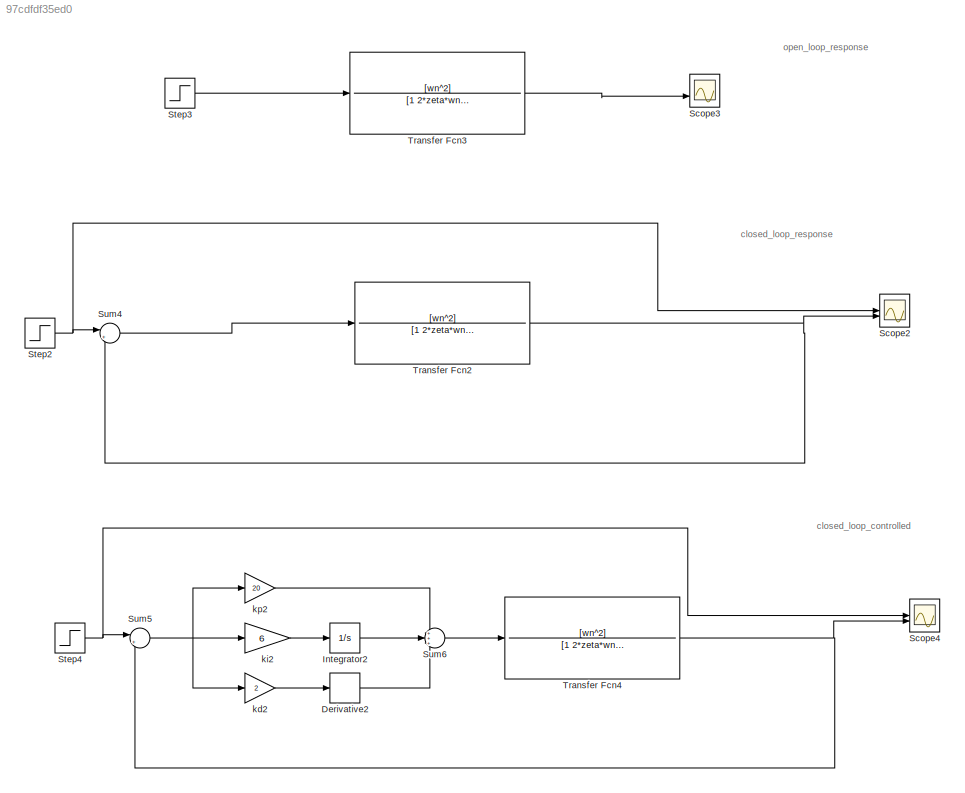
MODEL slx_97cdfdf35ed0
KIND model
CONFIG AbsTol = auto
CONFIG EnableMultiTasking = off
CONFIG FixedStep = auto
CONFIG MaxStep = 1e-3
CONFIG MinStep = auto
CONFIG RelTol = auto
CONFIG SampleTimeConstraint = Unconstrained
CONFIG SolverName = VariableStepAuto
CONFIG StartTime = 0.0
CONFIG StopTime = 10.0
BLOCK [Derivative] Derivative2
BLOCK [Integrator] Integrator2
BLOCK [Scope] Scope2
  Floating = off
  NumInputPorts = 2
  ScopeSpecificationString = Simulink.scopes.TimeScopeBlockCfg('CurrentConfiguration', extmgr.ConfigurationSet(extmgr.Configuration('Core','General UI',true),extmgr.Configuration('Core','Source UI',true),extmgr.Configuration('Sources','WiredSimulink',true,'DataLoggingVariableName','ScopeData2'),extmgr.Configuration('Visuals','Time Domain',true,'SerializedDisplays',{struct('MinYLimReal','-0.12505','MaxYLimReal','1.12546','YLab...<+1479ch>
BLOCK [Scope] Scope3
  Floating = off
  NumInputPorts = 2
  ScopeSpecificationString = Simulink.scopes.TimeScopeBlockCfg('CurrentConfiguration', extmgr.ConfigurationSet(extmgr.Configuration('Core','General UI',true),extmgr.Configuration('Core','Source UI',true),extmgr.Configuration('Sources','WiredSimulink',true,'DataLoggingVariableName','ScopeData3'),extmgr.Configuration('Visuals','Time Domain',true,'SerializedDisplays',{struct('MinYLimReal','-0.12505','MaxYLimReal','1.12546','YLab...<+1479ch>
BLOCK [Scope] Scope4
  Floating = off
  NumInputPorts = 2
  ScopeSpecificationString = Simulink.scopes.TimeScopeBlockCfg('CurrentConfiguration', extmgr.ConfigurationSet(extmgr.Configuration('Core','General UI',true),extmgr.Configuration('Core','Source UI',true),extmgr.Configuration('Sources','WiredSimulink',true,'DataLoggingVariableName','ScopeData4'),extmgr.Configuration('Visuals','Time Domain',true,'SerializedDisplays',{struct('MinYLimReal','-0.12505','MaxYLimReal','1.12546','YLab...<+1479ch>
BLOCK [Step] Step2
  SampleTime = 0
BLOCK [Step] Step3
  SampleTime = 0
BLOCK [Step] Step4
  SampleTime = 0
BLOCK [Sum] Sum4
  Inputs = |+-
  NameLocation = right
BLOCK [Sum] Sum5
  Inputs = |+-
  NameLocation = right
BLOCK [Sum] Sum6
  Inputs = +++
BLOCK [TransferFcn] Transfer Fcn2
  Denominator = [1  2*zeta*wn  wn^2]
  Numerator = [wn^2]
BLOCK [TransferFcn] Transfer Fcn3
  Denominator = [1  2*zeta*wn  wn^2]
  Numerator = [wn^2]
BLOCK [TransferFcn] Transfer Fcn4
  Denominator = [1  2*zeta*wn  wn^2]
  Numerator = [wn^2]
BLOCK [Gain] kd2
  Gain = 2
BLOCK [Gain] ki2
  Gain = 6
BLOCK [Gain] kp2
  Gain = 20
ANNOTATION (root): closed_loop_controlled
ANNOTATION (root): closed_loop_response
ANNOTATION (root): open_loop_response
LINE Derivative2:1 -> Sum6:3
LINE Integrator2:1 -> Sum6:2
NET Step2:1 -> Scope2:1, Sum4:1
LINE Step3:1 -> Transfer Fcn3:1
NET Step4:1 -> Scope4:1, Sum5:1
LINE Sum4:1 -> Transfer Fcn2:1
NET Sum5:1 -> kd2:1, ki2:1, kp2:1
LINE Sum6:1 -> Transfer Fcn4:1
NET Transfer Fcn2:1 -> Scope2:2, Sum4:2
LINE Transfer Fcn3:1 -> Scope3:2
NET Transfer Fcn4:1 -> Scope4:2, Sum5:2
LINE kd2:1 -> Derivative2:1
LINE ki2:1 -> Integrator2:1
LINE kp2:1 -> Sum6:1
note: NET lines group one-source signal fan-out (src -> all destinations, sorted); 1:1 wires keep LINE
